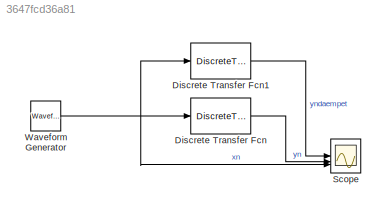
MODEL slx_3647fcd36a81
KIND model
CONFIG AbsTol = auto
CONFIG EnableMultiTasking = off
CONFIG FixedStep = auto
CONFIG MaxStep = auto
CONFIG MinStep = auto
CONFIG RelTol = 1e-3
CONFIG SampleTimeConstraint = Unconstrained
CONFIG SolverName = VariableStepAuto
CONFIG StartTime = 0.0
CONFIG StopTime = 10
BLOCK [DiscreteTransferFcn] Discrete Transfer Fcn
  InputPortMap = u0
  Numerator = [1 -2]
BLOCK [DiscreteTransferFcn] Discrete Transfer Fcn1
  InputPortMap = u0
  Numerator = [1 -2]
BLOCK [Scope] Scope
  Floating = off
  NumInputPorts = 3
  ScopeSpecificationString = Simulink.scopes.TimeScopeBlockCfg('CurrentConfiguration', extmgr.ConfigurationSet(extmgr.Configuration('Core','General UI',true),extmgr.Configuration('Core','Source UI',true),extmgr.Configuration('Sources','WiredSimulink',true),extmgr.Configuration('Visuals','Time Domain',true,'SerializedDisplays',{struct('MinYLimReal','-1.81253','MaxYLimReal','1.3125','YLabelReal','','MinYLimMag','0.00000','MaxYL...<+1349ch>
BLOCK [Reference] Waveform Generator  REF=simulink/Sources/Waveform
Generator
  SourceBlock = simulink/Sources/Waveform\nGenerator
  SourceType = WaveformGenerator
LINE Discrete Transfer Fcn1:1 -> Scope:1
LINE Discrete Transfer Fcn:1 -> Scope:2
NET Waveform Generator:1 -> Discrete Transfer Fcn1:1, Discrete Transfer Fcn:1, Scope:3
note: NET lines group one-source signal fan-out (src -> all destinations, sorted); 1:1 wires keep LINE
